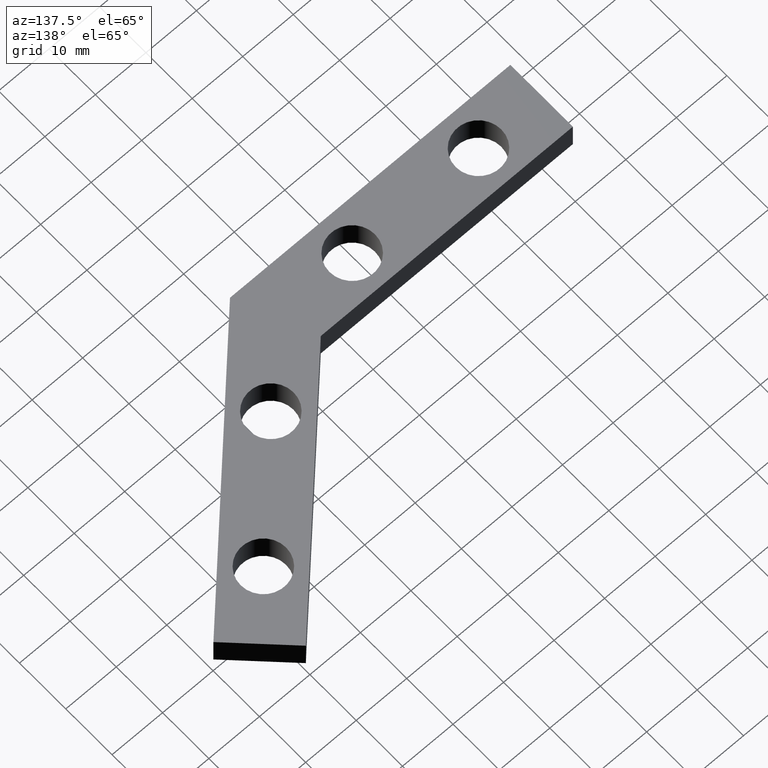
[diagram: clean part render]
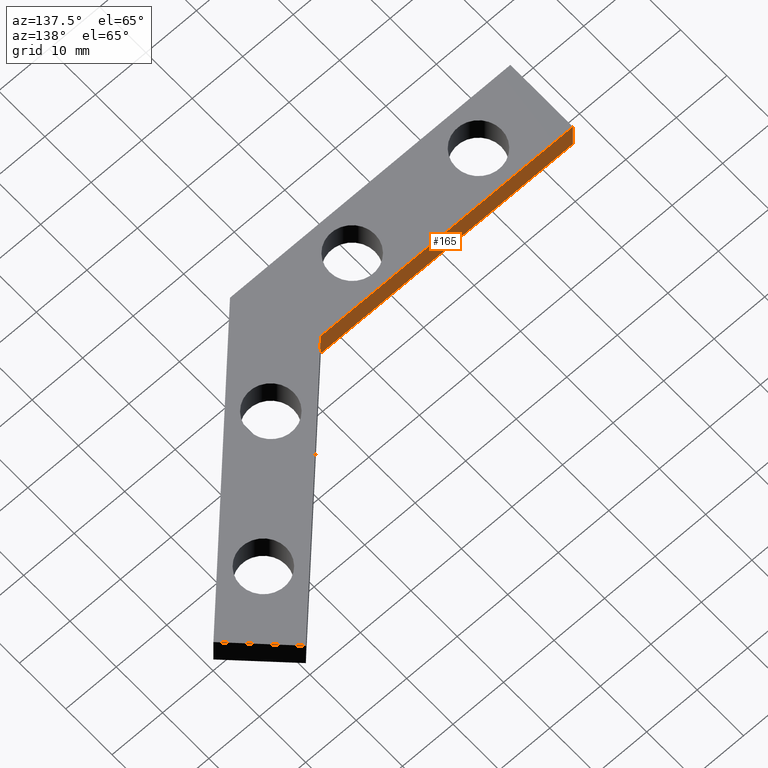
[diagram: same view with one face highlighted and labeled with its STEP entity id]
A machine part, auxiliary view. The second image highlights one B-rep face of the part: STEP entity #165.
In plain terms, the highlighted planar face has unit normal (0, -1, 0).
Its self-contained STEP definition (entity closure, byte-faithful):
#110=CARTESIAN_POINT('',(-5.591882999977770,13.499999999945885,0.0));
#111=VERTEX_POINT('',#110);
#118=CARTESIAN_POINT('',(-5.591882999977770,13.499999999945885,6.0));
#119=VERTEX_POINT('',#118);
#120=CARTESIAN_POINT('',(-5.591882999977770,13.499999999945885,6.0));
#121=DIRECTION('',(0.0,0.0,-1.0));
#122=VECTOR('',#121,6.0);
#123=LINE('',#120,#122);
#124=EDGE_CURVE('',#119,#111,#123,.T.);
#135=CARTESIAN_POINT('',(-5.591882999977770,13.499999999945885,6.0));
#136=DIRECTION('',(0.0,-1.0,0.0));
#137=DIRECTION('',(-1.0,0.0,0.0));
#138=AXIS2_PLACEMENT_3D('',#135,#136,#137);
#139=PLANE('',#138);
#140=ORIENTED_EDGE('',*,*,#124,.T.);
#141=CARTESIAN_POINT('',(-55.500028999778351,13.499999999945885,0.0));
#142=VERTEX_POINT('',#141);
#143=CARTESIAN_POINT('',(-5.591882999977770,13.499999999945885,0.0));
#144=DIRECTION('',(-1.0,0.0,0.0));
#145=VECTOR('',#144,49.908145999800581);
#146=LINE('',#143,#145);
#147=EDGE_CURVE('',#111,#142,#146,.T.);
#148=ORIENTED_EDGE('',*,*,#147,.T.);
#149=CARTESIAN_POINT('',(-55.500028999778351,13.499999999945885,6.0));
#150=VERTEX_POINT('',#149);
#151=CARTESIAN_POINT('',(-55.500028999778351,13.499999999945885,6.0));
#152=DIRECTION('',(0.0,0.0,-1.0));
#153=VECTOR('',#152,6.0);
#154=LINE('',#151,#153);
#155=EDGE_CURVE('',#150,#142,#154,.T.);
#156=ORIENTED_EDGE('',*,*,#155,.F.);
#157=CARTESIAN_POINT('',(-5.591882999977770,13.499999999945885,6.0));
#158=DIRECTION('',(-1.0,0.0,0.0));
#159=VECTOR('',#158,49.908145999800581);
#160=LINE('',#157,#159);
#161=EDGE_CURVE('',#119,#150,#160,.T.);
#162=ORIENTED_EDGE('',*,*,#161,.F.);
#163=EDGE_LOOP('',(#140,#148,#156,#162));
#164=FACE_OUTER_BOUND('',#163,.T.);
#165=ADVANCED_FACE('',(#164),#139,.F.);